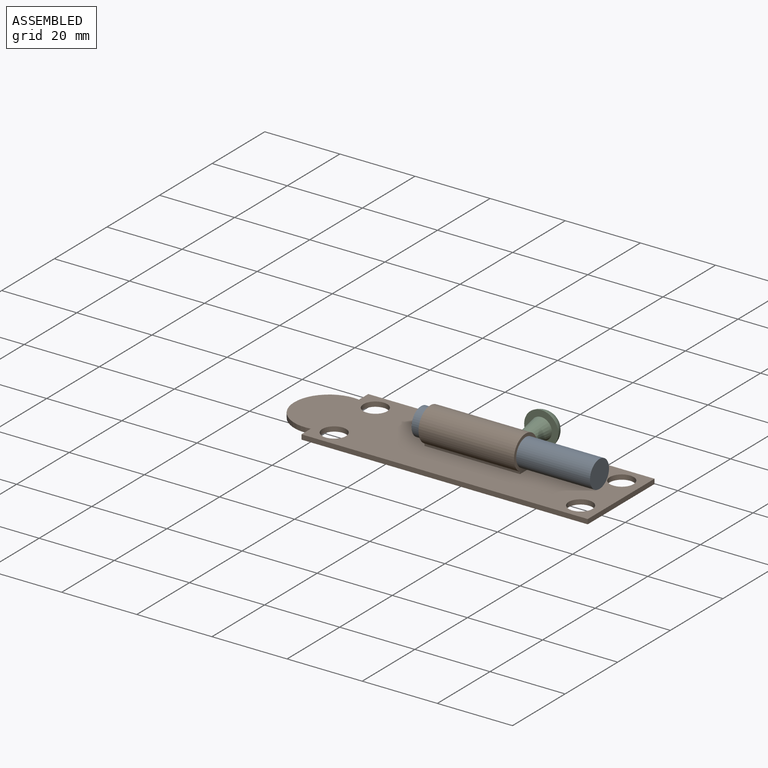
[diagram: assembled view]
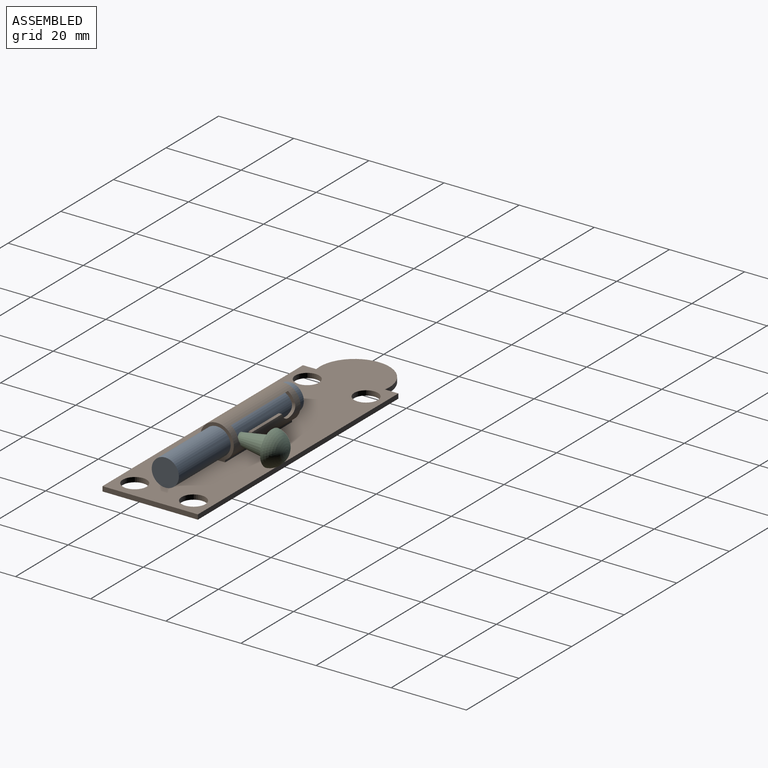
[diagram: assembled view, second angle]
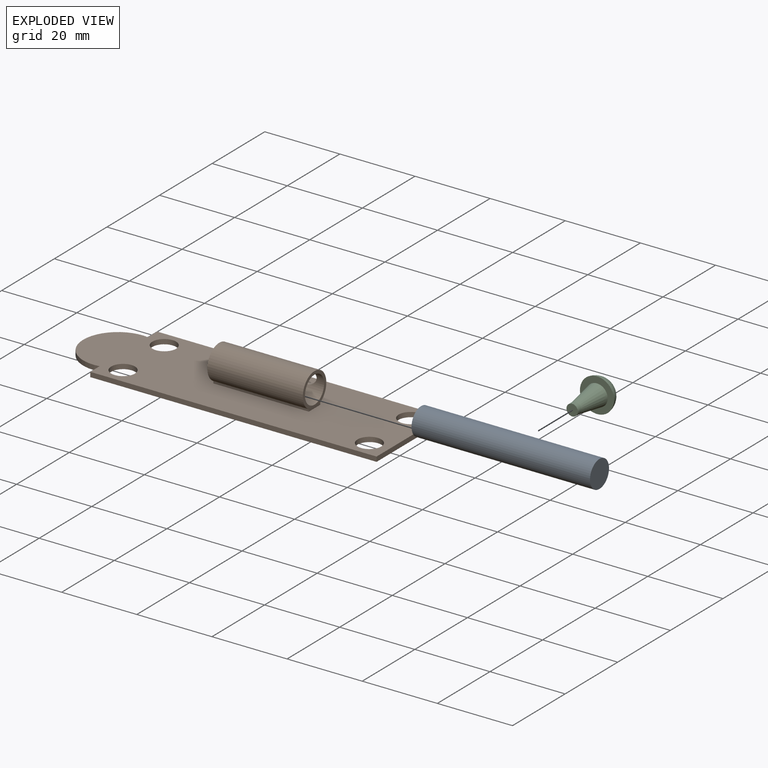
[diagram: exploded view]
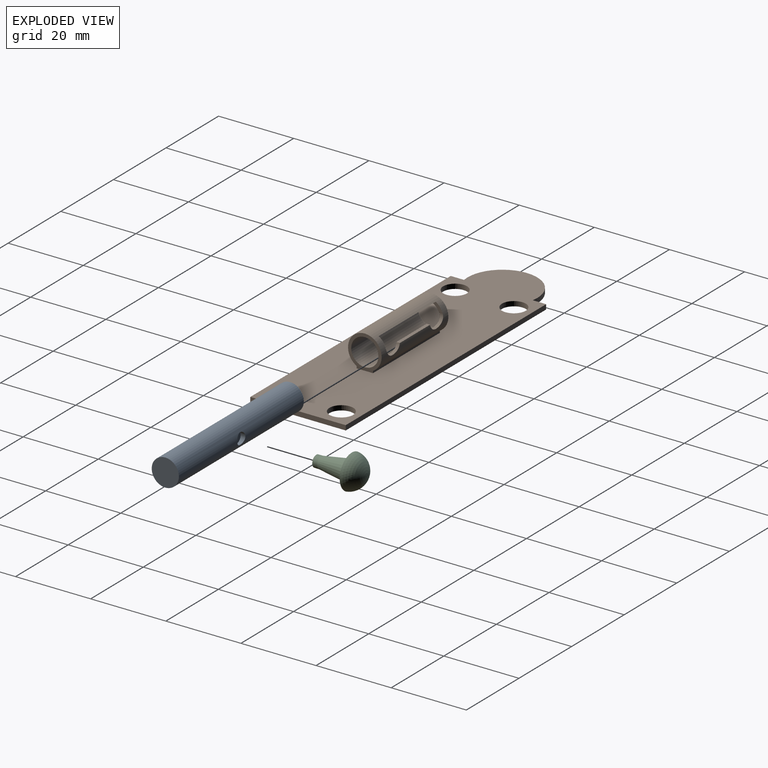
[diagram: exploded view, second angle]
ASSEMBLY  parts=3 mates=2
PART A: 5 faces, bbox 47.5x7.2x7.2 mm
  f0: cylinder r=3.62mm len=47.5mm, axis (-1,0,0), area 1072.7mm2, adj f1,f2,f3
  f1: plane 7.24x7.24mm, normal (1,0,0), area 41.2mm2, adj f0
  f2: plane 7.24x7.24mm, normal (-1,0,0), area 41.2mm2, adj f0
  f3: cylinder r=1.52mm len=3.05mm, axis (0,-1,0), area 10.6mm2, adj f0,f4
  f4: plane 3.05x3.05mm, normal (0,-1,0), area 7.3mm2, adj f3
PART B: 25 faces, bbox 87x25.4x10.2 mm
  f0: plane 3.54x1.27mm, normal (-1,0,0), area 4.5mm2, adj f1,f5,f6,f7
  f1: cylinder r=9.28mm len=18.56mm, axis (0,0,1), area 40.9mm2, adj f0,f2,f6,f7
  f2: plane 3.54x1.27mm, normal (-1,0,0), area 4.5mm2, adj f1,f3,f6,f7
  f3: plane 76.2x1.27mm, normal (0,-1,0), area 96.8mm2, adj f2,f4,f6,f7
  f4: plane 25.4x1.27mm, normal (1,0,0), area 32.3mm2, adj f3,f5,f6,f7
  f5: plane 76.2x1.27mm, normal (0,1,0), area 96.8mm2, adj f0,f4,f6,f7
  f6: plane 86.99x25.4mm, normal (0,0,-1), area 1972mm2, adj f0,f1,f2,f3,f4,f5,f8,f9
  f7: plane 86.99x25.4mm, normal (0,0,1), area 1861.6mm2, adj f0,f1,f2,f3,f4,f5,f8,f9
  f8: cylinder r=3.17mm len=6.35mm, axis (0,0,1), area 25.3mm2, adj f6,f7
  f9: cylinder r=3.17mm len=6.35mm, axis (0,0,1), area 25.3mm2, adj f6,f7
  f10: cylinder r=3.17mm len=6.35mm, axis (0,0,1), area 25.3mm2, adj f6,f7
  f11: cylinder r=3.17mm len=6.35mm, axis (0,0,1), area 25.3mm2, adj f6,f7
  f12: plane 25.4x0.56mm, normal (0,-1,0), area 14.3mm2, adj f7,f14,f16,f17
  f13: plane 25.4x0.56mm, normal (0,1,0), area 14.3mm2, adj f7,f14,f16,f17
  f14: cylinder r=4.47mm len=25.4mm, axis (-1,0,0), area 501.6mm2, adj f12,f13,f16,f17,f18,f19,f20,f21
  f15: cylinder r=3.62mm len=25.4mm, axis (-1,0,0), area 456mm2, adj f16,f17,f19,f20,f21,f22,f23,f24
  f16: plane 8.94x8.94mm, normal (1,0,0), area 22.4mm2, adj f7,f12,f13,f14,f15
  f17: plane 8.94x8.94mm, normal (-1,0,0), area 22.4mm2, adj f7,f12,f13,f14,f15
  f18: plane 21.66x2.39mm, normal (0,0,-1), area 51.7mm2, adj f14,f22,f23,f24
  f19: cylinder r=2.61mm len=5.12mm, axis (0,-1,0), area 6.8mm2, adj f14,f15,f20,f23
  f20: plane 11.45x0.86mm, normal (0,0,1), area 9.9mm2, adj f14,f15,f19,f21
  f21: cylinder r=2.61mm len=5.12mm, axis (0,-1,0), area 6.8mm2, adj f14,f15,f20,f22
  f22: plane 4.14x2.1mm, normal (-1,0,0), area 2.8mm2, adj f14,f15,f18,f21,f24
  f23: plane 4.14x2.1mm, normal (1,0,0), area 2.8mm2, adj f14,f15,f18,f19,f24
  f24: plane 21.66x0.16mm, normal (0,1,0), area 3.4mm2, adj f15,f18,f22,f23
PART C: 5 faces, bbox 9.1x13.4x9.1 mm
  f0: sphere r=4.59mm, area 113.9mm2, adj f2
  f1: cone r=1.52mm half-angle=9.2deg, axis (0,-1,0), area 113.1mm2, adj f2,f3
  f2: plane 9.09x9.09mm, normal (0,1,0), area 39.5mm2, adj f0,f1
  f3: cylinder r=1.52mm len=3.05mm, axis (0,-1,0), area 12.2mm2, adj f1,f4
  f4: plane 3.05x3.05mm, normal (0,1,0), area 7.3mm2, adj f3
PLACE A rot(axis=(1,0,0),180deg) t=(-37.68,-15.26,4.48)mm
PLACE B t=(-22.53,-15.26,0.01)mm
PLACE C rot(axis=(1,0,0),180deg) t=(-13.93,-4.13,4.48)mm
MATE cylindrical A.f0 <-> B.f14  axis (-1,0,0) through (-13.93,-15.26,4.48)mm
MATE fastened A.f3 <-> C.f3  axis (0,1,0) through (-13.93,-12.91,4.48)mm
